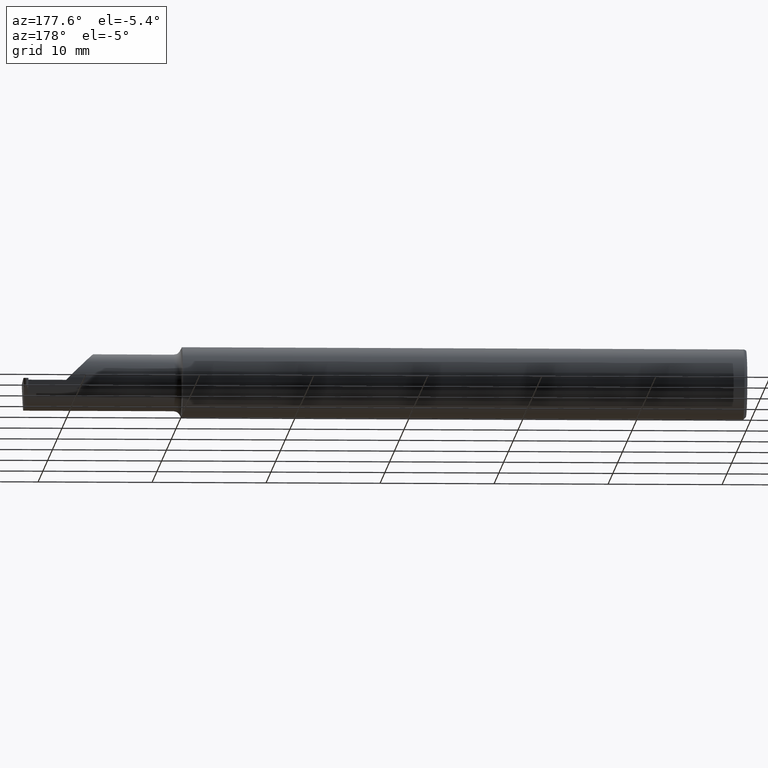
[diagram: clean part render]
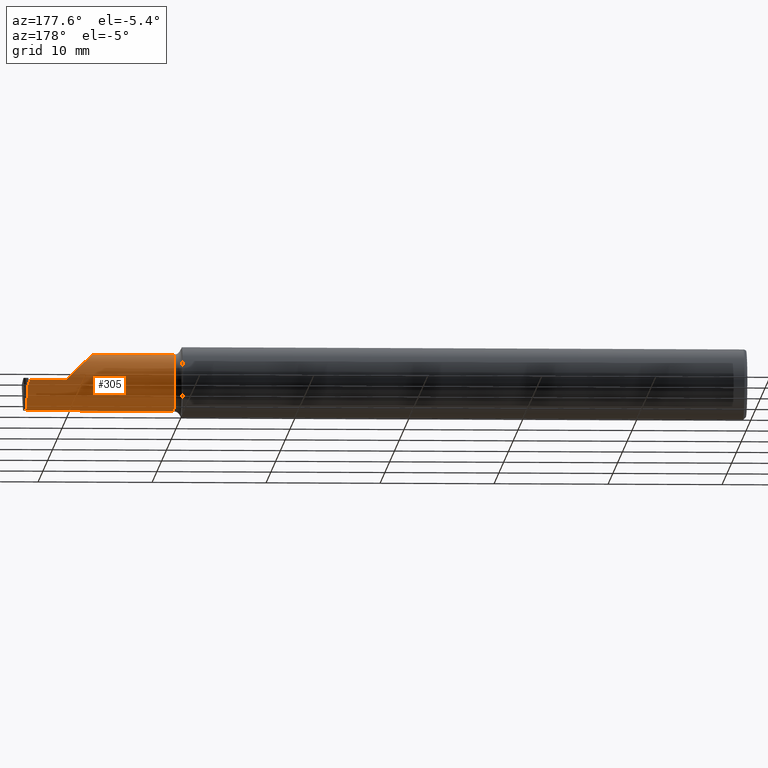
[diagram: same view with one face highlighted and labeled with its STEP entity id]
A machine part, auxiliary view. The second image highlights one B-rep face of the part: STEP entity #305.
In plain terms, the highlighted cylindrical surface (edge-blend (fillet) strip) has radius 2.4892 mm, axis along (-1, 0, -0).
Its self-contained STEP definition (entity closure, byte-faithful):
#4 = CARTESIAN_POINT ( 'NONE',  ( 2.477090476183632539, 0.05376127692546276565, -0.006836134426923926553 ) ) ;
#6 = EDGE_CURVE ( 'NONE', #270, #13, #660, .T. ) ;
#13 = VERTEX_POINT ( 'NONE', #443 ) ;
#16 = CARTESIAN_POINT ( 'NONE',  ( 1.949999999999999956, 0.05376127692546273096, -0.006836134426925155605 ) ) ;
#24 = VERTEX_POINT ( 'NONE', #385 ) ;
#27 = VECTOR ( 'NONE', #613, 39.37007874015748143 ) ;
#50 = EDGE_LOOP ( 'NONE', ( #120, #568, #438, #691, #96, #699, #214, #73, #312, #92 ) ) ;
#58 = CARTESIAN_POINT ( 'NONE',  ( 2.477249624899990899, 0.05392042564182090297, -0.002278711475641305526 ) ) ;
#59 = EDGE_CURVE ( 'NONE', #158, #289, #83, .T. ) ;
#70 =( BOUNDED_CURVE ( )  B_SPLINE_CURVE ( 3, ( #169, #215, #217, #166 ),
 .UNSPECIFIED., .F., .F. ) 
 B_SPLINE_CURVE_WITH_KNOTS ( ( 4, 4 ),
 ( 3.176499238629681532, 4.677482395344799926 ),
 .UNSPECIFIED. ) 
 CURVE ( )  GEOMETRIC_REPRESENTATION_ITEM ( )  RATIONAL_B_SPLINE_CURVE ( ( 1.000000000000000000, 0.8209024677461147501, 0.8209024677461147501, 1.000000000000000000 ) ) 
 REPRESENTATION_ITEM ( '' )  );
#73 = ORIENTED_EDGE ( 'NONE', *, *, #351, .F. ) ;
#75 =( BOUNDED_CURVE ( )  B_SPLINE_CURVE ( 3, ( #681, #574, #366, #90 ),
 .UNSPECIFIED., .F., .T. ) 
 B_SPLINE_CURVE_WITH_KNOTS ( ( 4, 4 ),
 ( 6.253187659403604215, 6.746650124384891534 ),
 .UNSPECIFIED. ) 
 CURVE ( )  GEOMETRIC_REPRESENTATION_ITEM ( )  RATIONAL_B_SPLINE_CURVE ( ( 1.000000000000000000, 0.9798106333074689811, 0.9798106333074689811, 1.000000000000000000 ) ) 
 REPRESENTATION_ITEM ( '' )  );
#80 = VERTEX_POINT ( 'NONE', #509 ) ;
#83 = LINE ( 'NONE', #610, #27 ) ;
#90 = CARTESIAN_POINT ( 'NONE',  ( 2.493833913251130241, -0.04400000000000026112, -0.09800000000000008704 ) ) ;
#92 = ORIENTED_EDGE ( 'NONE', *, *, #260, .F. ) ;
#96 = ORIENTED_EDGE ( 'NONE', *, *, #159, .T. ) ;
#105 = CARTESIAN_POINT ( 'NONE',  ( 2.228741705000000017, -0.09042045454545429017, 0.08630840862739524999 ) ) ;
#120 = ORIENTED_EDGE ( 'NONE', *, *, #464, .T. ) ;
#130 = CARTESIAN_POINT ( 'NONE',  ( 1.949999999999999956, 0.05399999999999999245, 6.735557395310437586E-17 ) ) ;
#137 = CARTESIAN_POINT ( 'NONE',  ( 2.263691591372603895, -0.09042045454545455385, 0.08630840862739504182 ) ) ;
#141 = DIRECTION ( 'NONE',  ( 0.000000000000000000, -1.000000000000000000, 0.000000000000000000 ) ) ;
#145 = DIRECTION ( 'NONE',  ( 0.000000000000000000, -1.000000000000000000, 0.000000000000000000 ) ) ;
#146 = VERTEX_POINT ( 'NONE', #459 ) ;
#154 = EDGE_CURVE ( 'NONE', #592, #270, #344, .T. ) ;
#158 = VERTEX_POINT ( 'NONE', #408 ) ;
#159 = EDGE_CURVE ( 'NONE', #617, #13, #604, .T. ) ;
#166 = CARTESIAN_POINT ( 'NONE',  ( 2.483759070038810801, 0.05376127692546273790, -0.006836134426924772231 ) ) ;
#169 = CARTESIAN_POINT ( 'NONE',  ( 2.487115857322145018, -0.04400000000000009459, -0.09800000000000008704 ) ) ;
#186 = VERTEX_POINT ( 'NONE', #393 ) ;
#196 = CARTESIAN_POINT ( 'NONE',  ( 1.949999999999999956, -0.04400000000000006684, 0.000000000000000000 ) ) ;
#205 = CARTESIAN_POINT ( 'NONE',  ( 2.487115857322145018, -0.04400000000000009459, -0.09800000000000008704 ) ) ;
#214 = ORIENTED_EDGE ( 'NONE', *, *, #154, .F. ) ;
#215 = CARTESIAN_POINT ( 'NONE',  ( 2.487048583644937416, 0.01027834358092123007, -0.09800000000000007316 ) ) ;
#217 = CARTESIAN_POINT ( 'NONE',  ( 2.485685536098598103, 0.04997501107658529340, -0.06098225869090300594 ) ) ;
#229 = DIRECTION ( 'NONE',  ( -1.000000000000000000, 6.412988513727268357E-17, -0.000000000000000000 ) ) ;
#238 = VECTOR ( 'NONE', #666, 39.37007874015748143 ) ;
#247 = EDGE_CURVE ( 'NONE', #146, #24, #376, .T. ) ;
#260 = EDGE_CURVE ( 'NONE', #80, #158, #75, .T. ) ;
#270 = VERTEX_POINT ( 'NONE', #416 ) ;
#289 = VERTEX_POINT ( 'NONE', #205 ) ;
#295 = CARTESIAN_POINT ( 'NONE',  ( 1.974999999999999867, -0.04400000000000006684, 0.000000000000000000 ) ) ;
#305 = ADVANCED_FACE ( 'NONE', ( #472 ), #690, .T. ) ;
#312 = ORIENTED_EDGE ( 'NONE', *, *, #59, .F. ) ;
#314 = DIRECTION ( 'NONE',  ( 1.000000000000000000, -6.412988513727268357E-17, 0.000000000000000000 ) ) ;
#334 = EDGE_CURVE ( 'NONE', #146, #186, #375, .T. ) ;
#343 = CARTESIAN_POINT ( 'NONE',  ( 2.266956372099407258, 0.05399999999999999939, 0.08304362790059183208 ) ) ;
#344 = LINE ( 'NONE', #16, #538 ) ;
#345 = CARTESIAN_POINT ( 'NONE',  ( 2.350000000000000089, 0.05399999999999996469, 6.735557395310437586E-17 ) ) ;
#351 = EDGE_CURVE ( 'NONE', #289, #592, #70, .T. ) ;
#366 = CARTESIAN_POINT ( 'NONE',  ( 2.493549648562250809, -0.06028551311893212694, -0.09800000000000005929 ) ) ;
#375 = LINE ( 'NONE', #105, #395 ) ;
#376 = CIRCLE ( 'NONE', #605, 0.09800000000000005929 ) ;
#379 = CARTESIAN_POINT ( 'NONE',  ( 2.477170050541811719, 0.05384085128364183431, -0.004557422951282611052 ) ) ;
#385 = CARTESIAN_POINT ( 'NONE',  ( 1.974999999999999867, -0.09042045454545435956, -0.08630840862739518060 ) ) ;
#393 = CARTESIAN_POINT ( 'NONE',  ( 2.263691591372603895, -0.09042045454545455385, 0.08630840862739504182 ) ) ;
#395 = VECTOR ( 'NONE', #314, 39.37007874015748143 ) ;
#408 = CARTESIAN_POINT ( 'NONE',  ( 2.493833913251130241, -0.04400000000000026112, -0.09800000000000008704 ) ) ;
#416 = CARTESIAN_POINT ( 'NONE',  ( 2.477090476183632539, 0.05376127692546276565, -0.006836134426923926553 ) ) ;
#423 = DIRECTION ( 'NONE',  ( -1.000000000000000000, 6.412988513727268357E-17, -0.000000000000000000 ) ) ;
#430 = AXIS2_PLACEMENT_3D ( 'NONE', #196, #423, #145 ) ;
#435 = CARTESIAN_POINT ( 'NONE',  ( 2.477329199258169634, 0.05399999999999997163, 0.000000000000000000 ) ) ;
#438 = ORIENTED_EDGE ( 'NONE', *, *, #334, .T. ) ;
#443 = CARTESIAN_POINT ( 'NONE',  ( 2.477329199258169634, 0.05399999999999997163, 0.000000000000000000 ) ) ;
#459 = CARTESIAN_POINT ( 'NONE',  ( 1.974999999999999867, -0.09042045454545424854, 0.08630840862739522223 ) ) ;
#464 = EDGE_CURVE ( 'NONE', #80, #24, #576, .T. ) ;
#470 = DIRECTION ( 'NONE',  ( -1.000000000000000000, 6.412988513727268357E-17, -0.000000000000000000 ) ) ;
#472 = FACE_OUTER_BOUND ( 'NONE', #50, .T. ) ;
#503 = VECTOR ( 'NONE', #470, 39.37007874015748143 ) ;
#509 = CARTESIAN_POINT ( 'NONE',  ( 2.493431982762754462, -0.09042045454545430405, -0.08630840862739524999 ) ) ;
#514 = DIRECTION ( 'NONE',  ( -1.000000000000000000, 6.412988513727268357E-17, -0.000000000000000000 ) ) ;
#532 = CARTESIAN_POINT ( 'NONE',  ( 2.228741705000000017, -0.09042045454545429017, -0.08630840862739524999 ) ) ;
#538 = VECTOR ( 'NONE', #229, 39.37007874015748143 ) ;
#549 = CARTESIAN_POINT ( 'NONE',  ( 2.350000000000000089, 0.05399999999999996469, 6.735557395310437586E-17 ) ) ;
#568 = ORIENTED_EDGE ( 'NONE', *, *, #247, .F. ) ;
#574 = CARTESIAN_POINT ( 'NONE',  ( 2.493412911089820660, -0.07607783494366276988, -0.09402249966297454575 ) ) ;
#576 = LINE ( 'NONE', #532, #503 ) ;
#581 = EDGE_CURVE ( 'NONE', #186, #617, #583, .T. ) ;
#583 =( BOUNDED_CURVE ( )  B_SPLINE_CURVE ( 3, ( #137, #619, #343, #549 ),
 .UNSPECIFIED., .F., .T. ) 
 B_SPLINE_CURVE_WITH_KNOTS ( ( 4, 4 ),
 ( 5.789722842198294472, 7.853981633974482790 ),
 .UNSPECIFIED. ) 
 CURVE ( )  GEOMETRIC_REPRESENTATION_ITEM ( )  RATIONAL_B_SPLINE_CURVE ( ( 1.000000000000000000, 0.6753281001527240424, 0.6753281001527240424, 1.000000000000000000 ) ) 
 REPRESENTATION_ITEM ( '' )  );
#592 = VERTEX_POINT ( 'NONE', #680 ) ;
#604 = LINE ( 'NONE', #130, #238 ) ;
#605 = AXIS2_PLACEMENT_3D ( 'NONE', #295, #514, #141 ) ;
#610 = CARTESIAN_POINT ( 'NONE',  ( 2.672413070268786939, -0.04400000000000026112, -0.09800000000000008704 ) ) ;
#613 = DIRECTION ( 'NONE',  ( -1.000000000000000000, -0.000000000000000000, -0.000000000000000000 ) ) ;
#617 = VERTEX_POINT ( 'NONE', #345 ) ;
#619 = CARTESIAN_POINT ( 'NONE',  ( 2.224355642859858317, -0.01728409361947881584, 0.1256443571401406056 ) ) ;
#660 = B_SPLINE_CURVE_WITH_KNOTS ( 'NONE', 3,
 ( #4, #379, #58, #435 ),
 .UNSPECIFIED., .F., .F.,
 ( 4, 4 ),
 ( 0.000000000000000000, 1.000000000000000000 ),
 .UNSPECIFIED. ) ;
#666 = DIRECTION ( 'NONE',  ( 1.000000000000000000, -6.412988513727268357E-17, 0.000000000000000000 ) ) ;
#680 = CARTESIAN_POINT ( 'NONE',  ( 2.483759070038810801, 0.05376127692546273790, -0.006836134426924772231 ) ) ;
#681 = CARTESIAN_POINT ( 'NONE',  ( 2.493431982762754462, -0.09042045454545430405, -0.08630840862739524999 ) ) ;
#690 = CYLINDRICAL_SURFACE ( 'NONE', #430, 0.09800000000000007316 ) ;
#691 = ORIENTED_EDGE ( 'NONE', *, *, #581, .T. ) ;
#699 = ORIENTED_EDGE ( 'NONE', *, *, #6, .F. ) ;